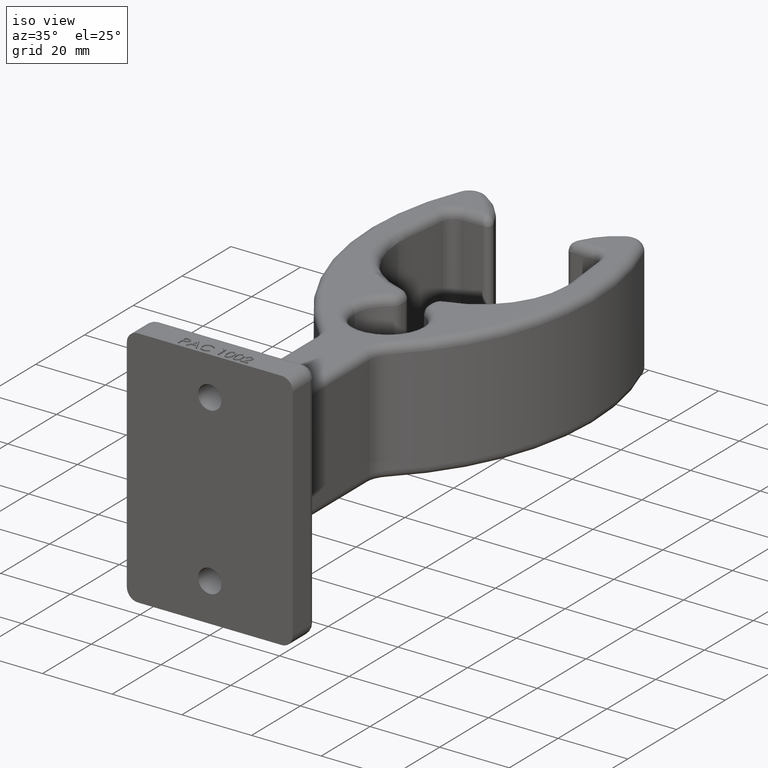
[diagram: clean part render]
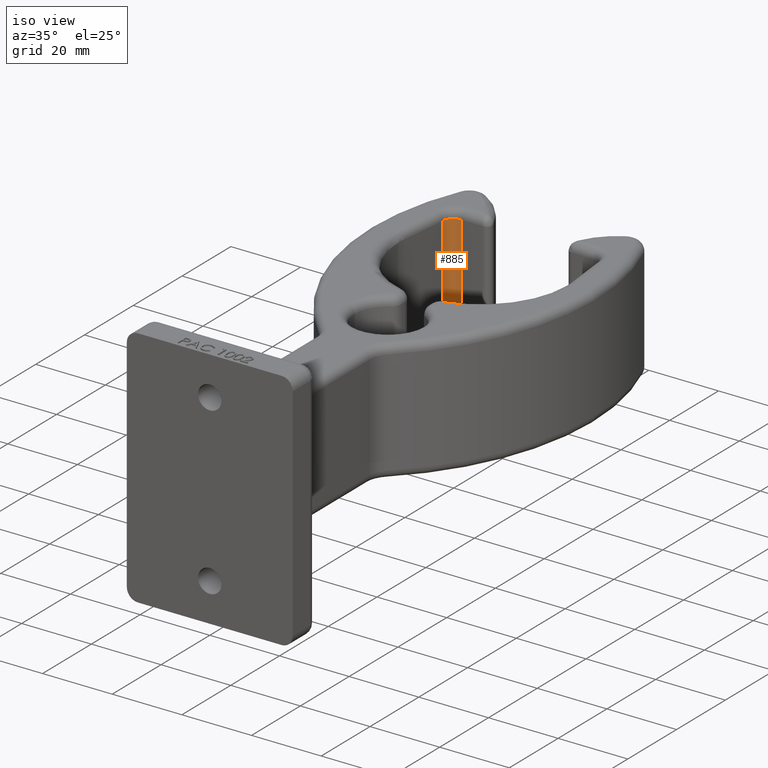
[diagram: same view with one face highlighted and labeled with its STEP entity id]
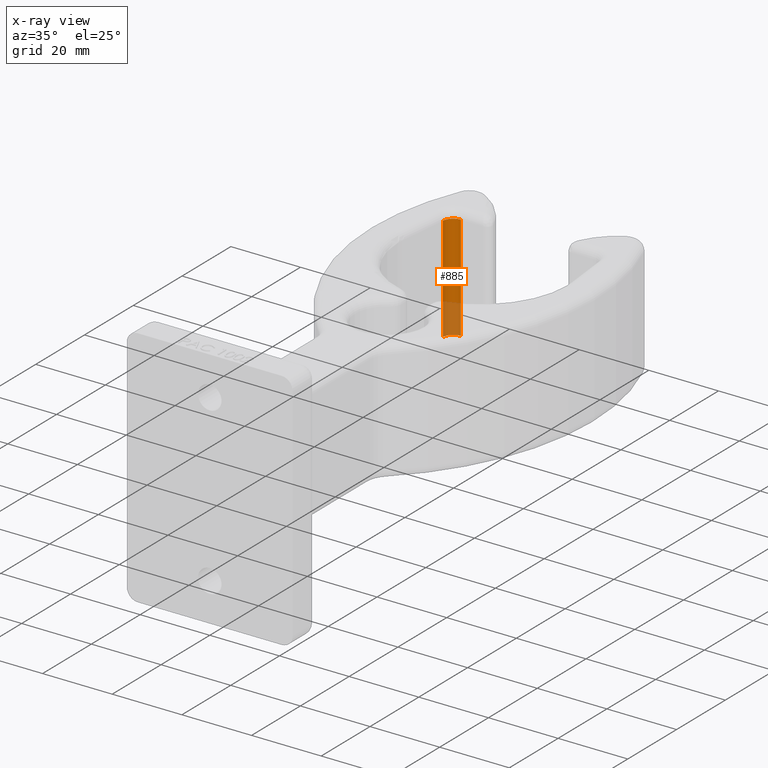
[diagram: x-ray of the same camera — body ghosted, the highlighted face saturated]
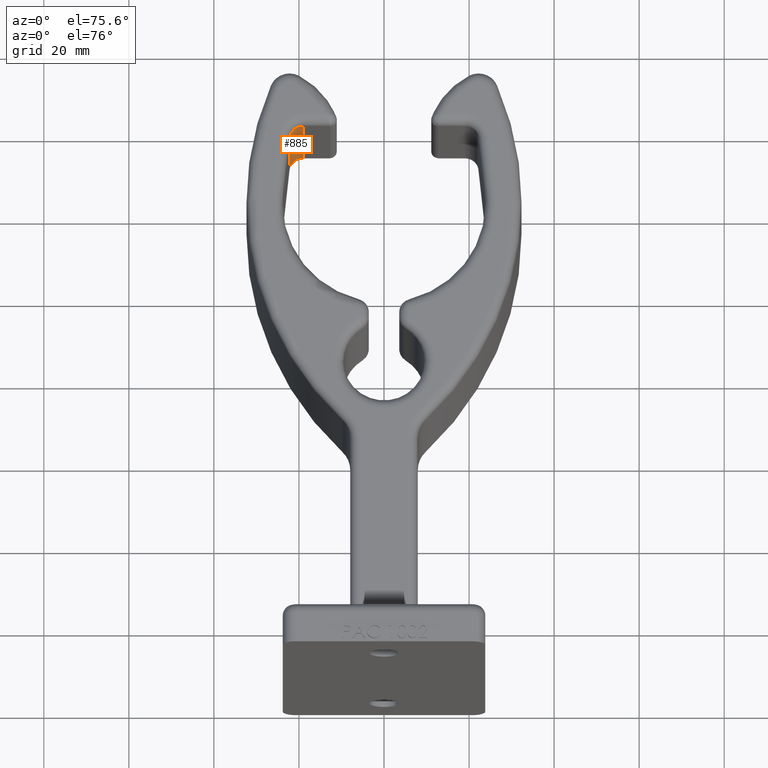
[diagram: same view with one face highlighted and labeled with its STEP entity id]
A machine part, iso view. The second image highlights one B-rep face of the part: STEP entity #885.
The next image is the same camera in x-ray: the body ghosted, the highlighted face saturated — about 28% of this face is hidden behind the body in this view.
A second angle (auxiliary view) of the same face is appended — the face is thin or edge-on in the first view.
In plain terms, the highlighted cylindrical surface (edge-blend (fillet) strip) has radius 3.175 mm, axis along (-0, -0, -1).
Its self-contained STEP definition (entity closure, byte-faithful):
#176 = VERTEX_POINT ( 'NONE', #4785 ) ;
#261 = VECTOR ( 'NONE', #5880, 39.37007874015748100 ) ;
#550 = VERTEX_POINT ( 'NONE', #3985 ) ;
#885 = ADVANCED_FACE ( 'NONE', ( #11857 ), #3081, .F. ) ;
#1233 = DIRECTION ( 'NONE',  ( -1.000000000000000000, 0.0000000000000000000, 0.0000000000000000000 ) ) ;
#1451 = CIRCLE ( 'NONE', #2265, 0.1250000000000003100 ) ;
#2068 = CARTESIAN_POINT ( 'NONE',  ( -0.7500000000000003300, 5.125000000000000000, -0.5937499999999998900 ) ) ;
#2265 = AXIS2_PLACEMENT_3D ( 'NONE', #3275, #10967, #4378 ) ;
#2630 = CARTESIAN_POINT ( 'NONE',  ( -0.8742840883086295800, 5.013359094029644000, 0.6875000000000000000 ) ) ;
#3081 = CYLINDRICAL_SURFACE ( 'NONE', #13489, 0.1250000000000003100 ) ;
#3216 = ORIENTED_EDGE ( 'NONE', *, *, #5221, .T. ) ;
#3275 = CARTESIAN_POINT ( 'NONE',  ( -0.7500000000000003300, 4.999999999999999100, -0.5937499999999998900 ) ) ;
#3985 = CARTESIAN_POINT ( 'NONE',  ( -0.7500000000000003300, 5.125000000000000000, 0.5937500000000000000 ) ) ;
#4378 = DIRECTION ( 'NONE',  ( 1.000000000000000000, 0.0000000000000000000, 0.0000000000000000000 ) ) ;
#4457 = EDGE_CURVE ( 'NONE', #550, #4511, #8339, .T. ) ;
#4511 = VERTEX_POINT ( 'NONE', #2068 ) ;
#4785 = CARTESIAN_POINT ( 'NONE',  ( -0.8742840883086295800, 5.013359094029644000, -0.5937499999999998900 ) ) ;
#5067 = CIRCLE ( 'NONE', #12307, 0.1250000000000003100 ) ;
#5221 = EDGE_CURVE ( 'NONE', #9010, #176, #6414, .T. ) ;
#5362 = EDGE_CURVE ( 'NONE', #550, #9010, #5067, .T. ) ;
#5880 = DIRECTION ( 'NONE',  ( -0.0000000000000000000, -0.0000000000000000000, -1.000000000000000000 ) ) ;
#5964 = ORIENTED_EDGE ( 'NONE', *, *, #6328, .T. ) ;
#6020 = ORIENTED_EDGE ( 'NONE', *, *, #4457, .F. ) ;
#6205 = CARTESIAN_POINT ( 'NONE',  ( -0.8742840883086295800, 5.013359094029644000, 0.5937500000000000000 ) ) ;
#6287 = CARTESIAN_POINT ( 'NONE',  ( -0.7500000000000003300, 4.999999999999999100, 0.5937500000000000000 ) ) ;
#6328 = EDGE_CURVE ( 'NONE', #176, #4511, #1451, .T. ) ;
#6372 = DIRECTION ( 'NONE',  ( -0.0000000000000000000, -0.0000000000000000000, -1.000000000000000000 ) ) ;
#6414 = LINE ( 'NONE', #2630, #261 ) ;
#6776 = EDGE_LOOP ( 'NONE', ( #3216, #5964, #6020, #14027 ) ) ;
#7378 = DIRECTION ( 'NONE',  ( 1.000000000000000000, 0.0000000000000000000, 0.0000000000000000000 ) ) ;
#7999 = VECTOR ( 'NONE', #6372, 39.37007874015748100 ) ;
#8339 = LINE ( 'NONE', #12984, #7999 ) ;
#8910 = CARTESIAN_POINT ( 'NONE',  ( -0.7500000000000003300, 4.999999999999999100, 0.6875000000000000000 ) ) ;
#9010 = VERTEX_POINT ( 'NONE', #6205 ) ;
#10034 = DIRECTION ( 'NONE',  ( -0.0000000000000000000, -0.0000000000000000000, -1.000000000000000000 ) ) ;
#10967 = DIRECTION ( 'NONE',  ( -0.0000000000000000000, -0.0000000000000000000, -1.000000000000000000 ) ) ;
#11857 = FACE_OUTER_BOUND ( 'NONE', #6776, .T. ) ;
#12307 = AXIS2_PLACEMENT_3D ( 'NONE', #6287, #14010, #7378 ) ;
#12984 = CARTESIAN_POINT ( 'NONE',  ( -0.7500000000000003300, 5.125000000000000000, 0.6875000000000000000 ) ) ;
#13489 = AXIS2_PLACEMENT_3D ( 'NONE', #8910, #10034, #1233 ) ;
#14010 = DIRECTION ( 'NONE',  ( 0.0000000000000000000, 0.0000000000000000000, 1.000000000000000000 ) ) ;
#14027 = ORIENTED_EDGE ( 'NONE', *, *, #5362, .T. ) ;